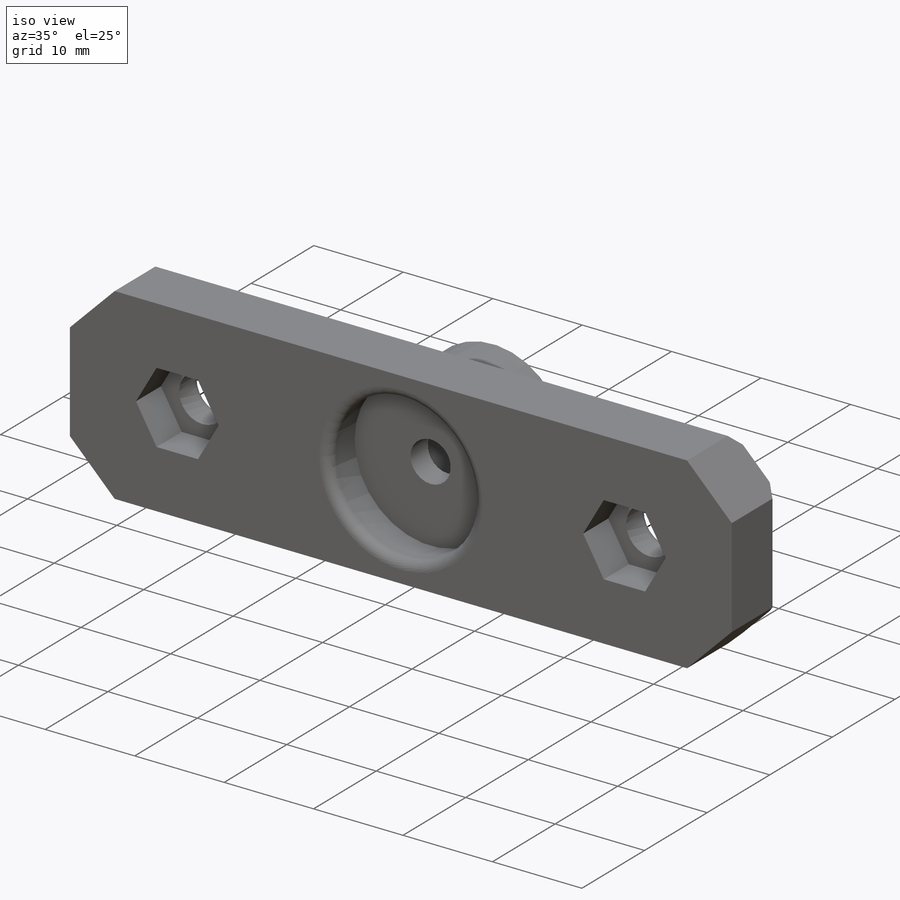
[diagram: iso view]
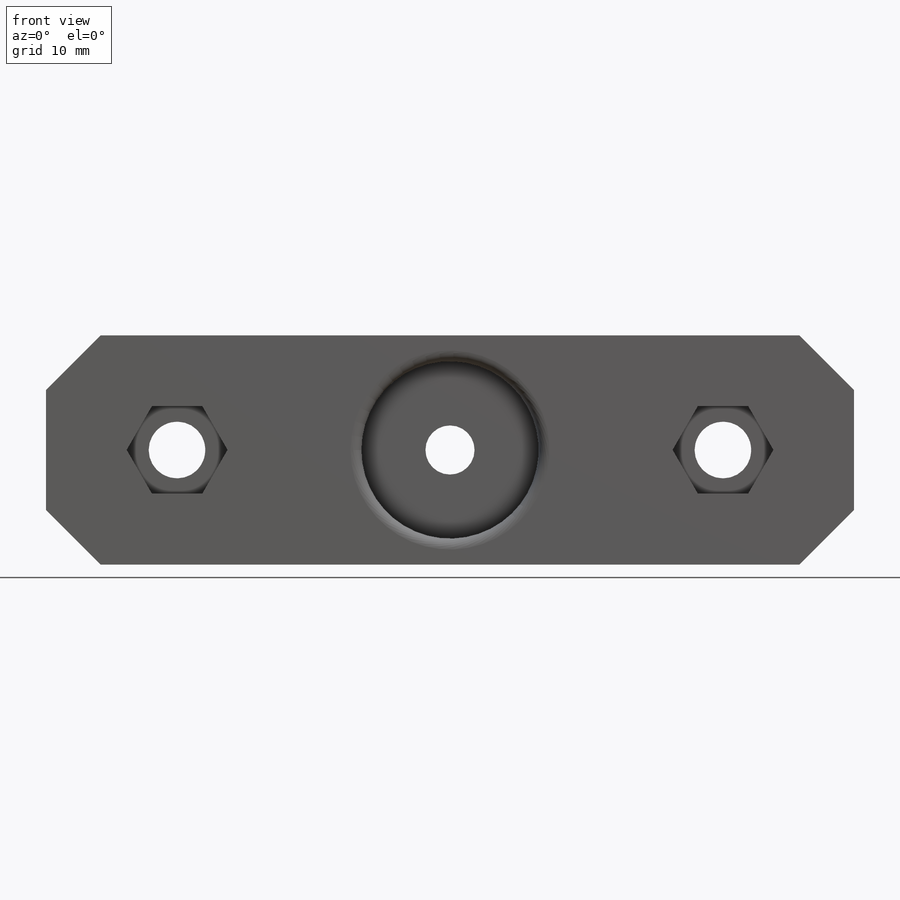
[diagram: front view]
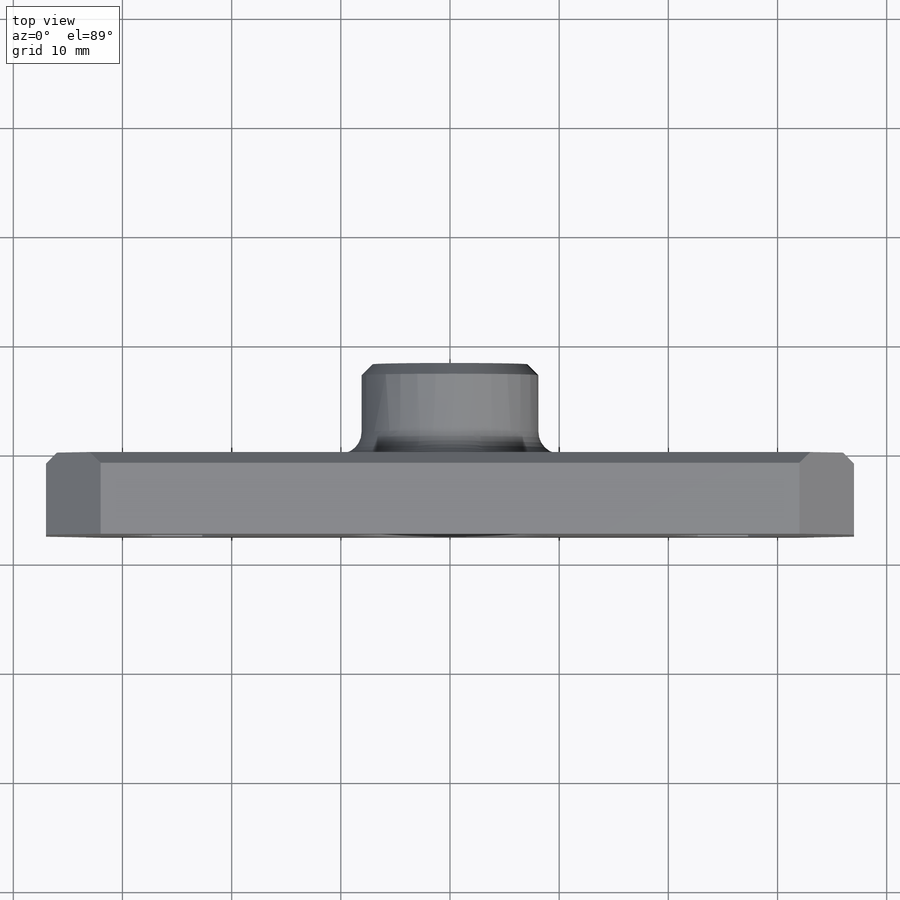
[diagram: top view]
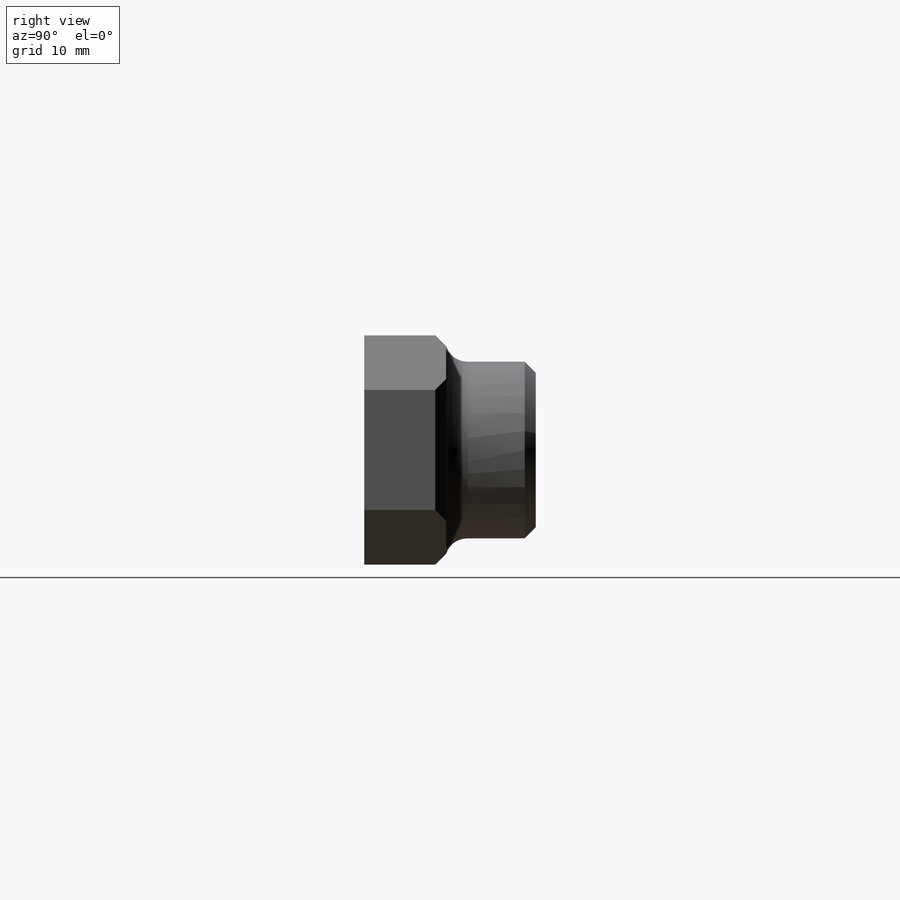
[diagram: right view]
SOLIDWORKS PART (.sldprt)
format: sldprt  version: not decoded by parser v0  size: 313,344 bytes
history: native  units: mm
features: sketch x6, cut_extrude x4, chamfer x3, fillet x3, material x1, extrude x1 (+13 scaffold rows collapsed)
feature tree (31):
  scaffold x13  (default folders/planes/origin — collapsed)
  material  "Material <not specified>"
  sketch  "Sketch1"  dims[D1=74.0mm D2=21.0mm]
  extrude  "Boss-Extrude1"  Depth=7.5mm
  sketch  "Sketch2"  dims[D1=16.0mm]
  cut_extrude  "Cut-Extrude1"  Depth=4.75mm
  sketch  "Sketch4"  dims[c1.D2=5.2mm c1.D3=5.2mm c1.D1=6.5mm c1.D4=30.5mm c2.D1=25.0mm]
  cut_extrude  "Cut-Extrude4"  [1 undecoded]
  chamfer  "Chamfer3"  Distance=5mm Angle=45deg
  sketch  "Sketch5"  dims[D1=8.0mm D2=8.0mm]
  cut_extrude  "Cut-Extrude6"  Depth=4mm
  sketch  "Sketch11"  dims[D1=4.5mm]
  cut_extrude  "Cut-Extrude10"  [1 undecoded]
  fillet  "Fillet4"  Radius=1mm
  fillet  "Fillet5"  Radius=1mm
  chamfer  "Chamfer5"  Distance=1mm Angle=45deg
  sketch  "Sketch12"  dims[c1.D1=12.2mm c2.D1=8.2mm c2.D5=2.0mm c2.D6=10.0mm c2.D7=5.0mm]
  fillet  "Fillet6"  Radius=2mm
  chamfer  "Chamfer6"  Distance=1mm Angle=45deg
decode coverage: 15 of 17 modeling features carry decoded parameters
note: 2 parameter values undecoded
note: suppression state not decoded; provenance and decode notes live in map.json
